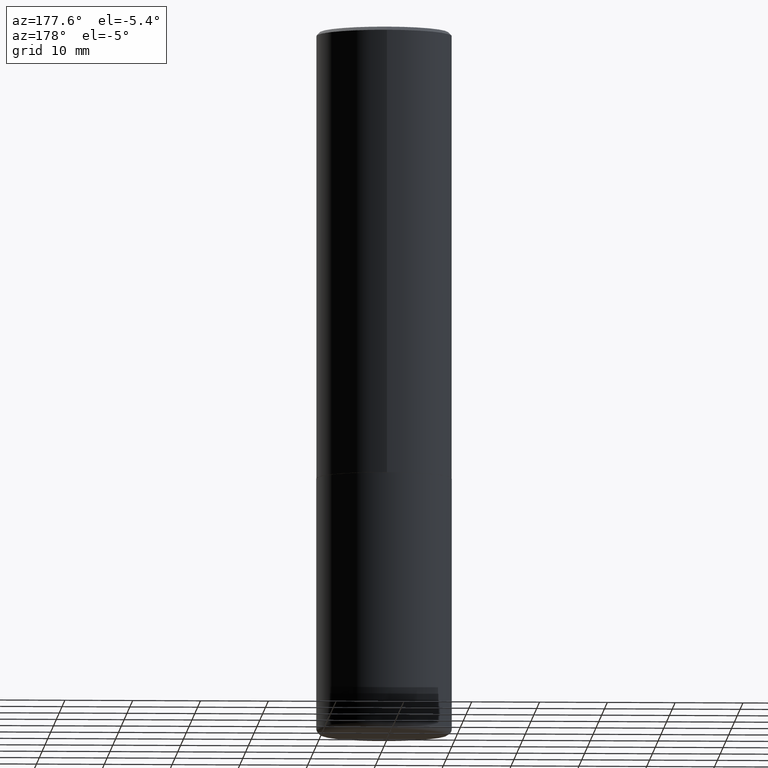
[diagram: clean part render]
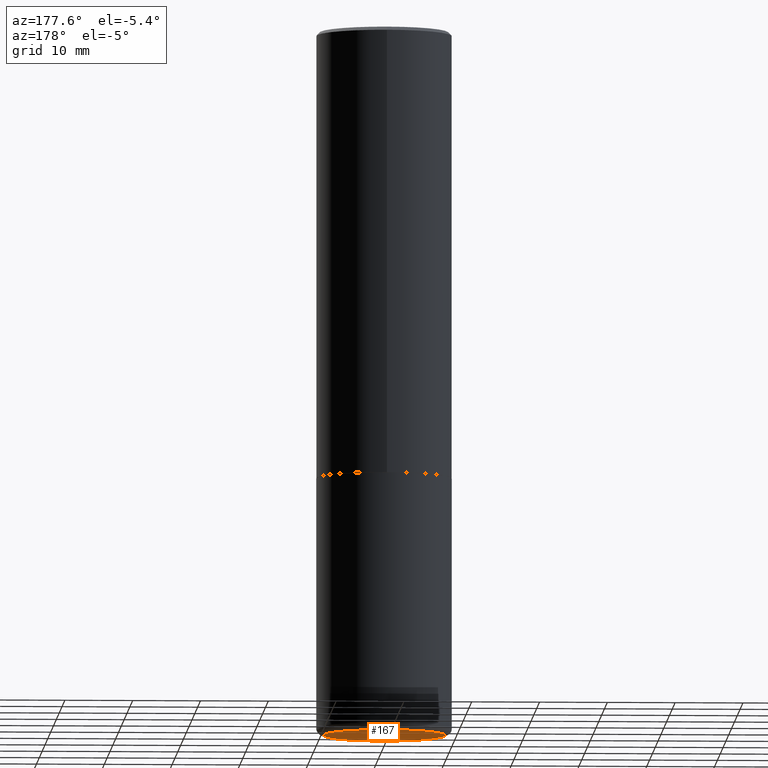
[diagram: same view with one face highlighted and labeled with its STEP entity id]
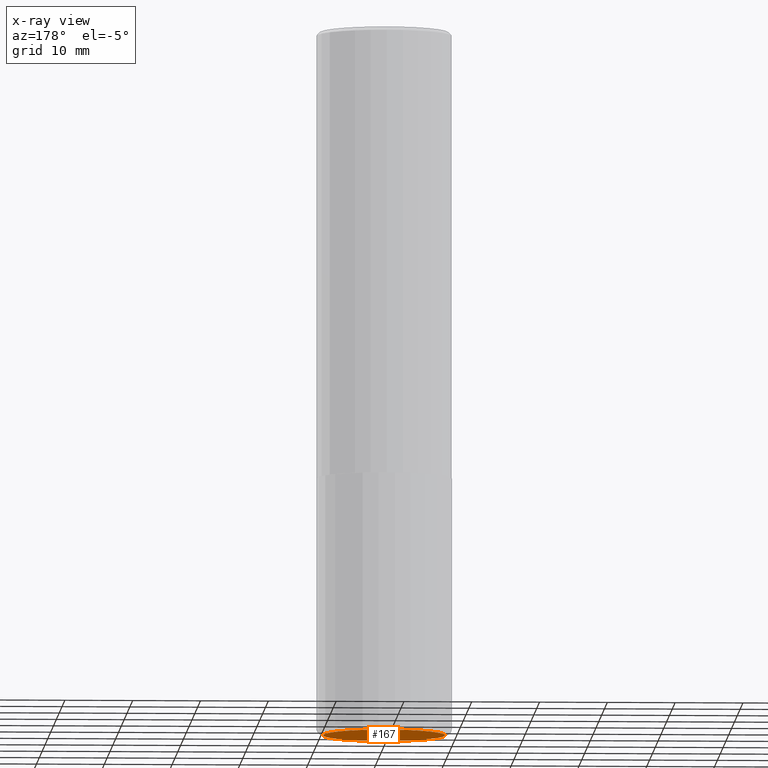
[diagram: x-ray of the same camera — body ghosted, the highlighted face saturated]
A machine part, auxiliary view. The second image highlights one B-rep face of the part: STEP entity #167.
The next image is the same camera in x-ray: the body ghosted, the highlighted face saturated — about 0% of this face is hidden behind the body in this view.
In plain terms, the highlighted planar face has unit normal (0, -0, -1).
Its self-contained STEP definition (entity closure, byte-faithful):
#9 = CARTESIAN_POINT ( 'NONE',  ( 1.001297202692504215E-28, -1.429587034189326149E-14, -4.094500000000000028 ) ) ;
#31 = FACE_OUTER_BOUND ( 'NONE', #55, .T. ) ;
#38 = DIRECTION ( 'NONE',  ( -2.445468806185136597E-29, 3.491481338843145583E-15, 1.000000000000000000 ) ) ;
#41 = CARTESIAN_POINT ( 'NONE',  ( 1.001297202692504215E-28, -1.429587034189326149E-14, -4.094500000000000028 ) ) ;
#55 = EDGE_LOOP ( 'NONE', ( #68, #350 ) ) ;
#68 = ORIENTED_EDGE ( 'NONE', *, *, #342, .F. ) ;
#127 = PLANE ( 'NONE',  #238 ) ;
#164 = DIRECTION ( 'NONE',  ( 2.438088387897960049E-29, -3.491481338843145188E-15, -1.000000000000000000 ) ) ;
#167 = ADVANCED_FACE ( 'NONE', ( #31 ), #127, .T. ) ;
#191 = CARTESIAN_POINT ( 'NONE',  ( 0.3543000000000000038, -1.676993401859750628E-14, -4.094500000000000028 ) ) ;
#229 = VERTEX_POINT ( 'NONE', #322 ) ;
#236 = DIRECTION ( 'NONE',  ( -2.445468806185136597E-29, 3.491481338843145583E-15, 1.000000000000000000 ) ) ;
#238 = AXIS2_PLACEMENT_3D ( 'NONE', #347, #164, #292 ) ;
#257 = VERTEX_POINT ( 'NONE', #191 ) ;
#259 = CIRCLE ( 'NONE', #405, 0.3543000000000000038 ) ;
#276 = AXIS2_PLACEMENT_3D ( 'NONE', #9, #38, #392 ) ;
#292 = DIRECTION ( 'NONE',  ( -1.000000000000000000, 6.982962677686265922E-15, -4.876176775795935793E-29 ) ) ;
#307 = DIRECTION ( 'NONE',  ( 1.000000000000000000, -6.982962677686266711E-15, 0.000000000000000000 ) ) ;
#308 = CIRCLE ( 'NONE', #276, 0.3543000000000000038 ) ;
#320 = EDGE_CURVE ( 'NONE', #229, #257, #259, .T. ) ;
#322 = CARTESIAN_POINT ( 'NONE',  ( -0.3543000000000000038, -1.156965832777527483E-14, -4.094500000000000028 ) ) ;
#342 = EDGE_CURVE ( 'NONE', #257, #229, #308, .T. ) ;
#347 = CARTESIAN_POINT ( 'NONE',  ( 1.001297202692504215E-28, -1.429587034189326149E-14, -4.094500000000000028 ) ) ;
#350 = ORIENTED_EDGE ( 'NONE', *, *, #320, .F. ) ;
#392 = DIRECTION ( 'NONE',  ( 1.000000000000000000, -6.982962677686266711E-15, 0.000000000000000000 ) ) ;
#405 = AXIS2_PLACEMENT_3D ( 'NONE', #41, #236, #307 ) ;